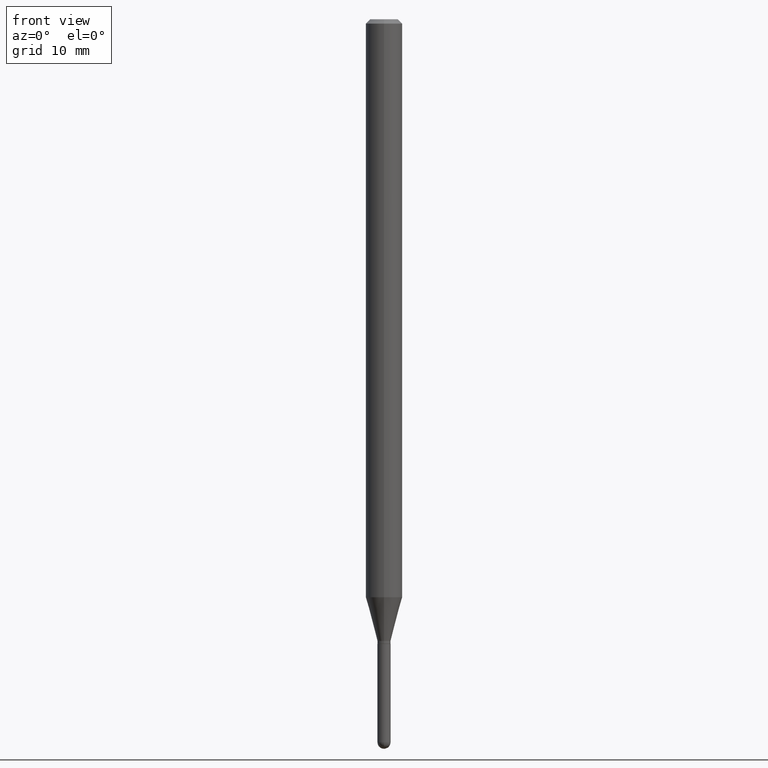
[diagram: clean part render]
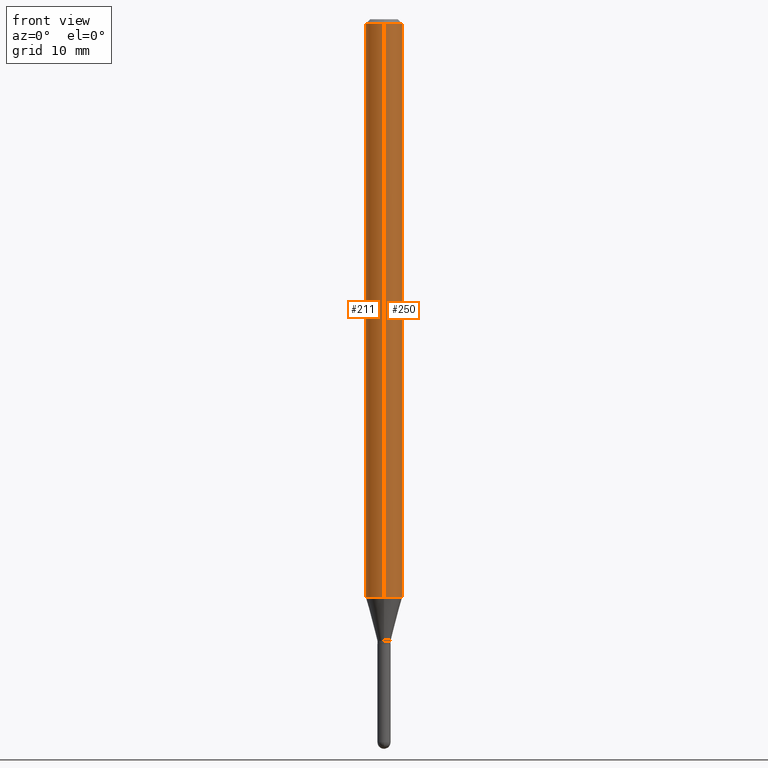
[diagram: same view with one multi-face feature highlighted, each face labeled with its STEP entity id]
A machine part, front view. The highlighted faces form ONE feature: a constant-radius fillet chain: 2 tangent blend faces with common blend radius 1.5875 mm. The faces share edges in the B-rep.
Their STEP definitions:
[1] entity #250 (Cylinder):
#13 = VERTEX_POINT ( 'NONE', #134 ) ;
#24 = ORIENTED_EDGE ( 'NONE', *, *, #463, .F. ) ;
#26 = DIRECTION ( 'NONE',  ( -6.982962677686265922E-15, -1.000000000000000000, 3.483106191921935554E-15 ) ) ;
#33 = FACE_OUTER_BOUND ( 'NONE', #379, .T. ) ;
#38 = VERTEX_POINT ( 'NONE', #365 ) ;
#44 = ORIENTED_EDGE ( 'NONE', *, *, #430, .T. ) ;
#61 = AXIS2_PLACEMENT_3D ( 'NONE', #115, #301, #344 ) ;
#63 = VECTOR ( 'NONE', #502, 39.37007874015748143 ) ;
#109 = LINE ( 'NONE', #265, #63 ) ;
#113 = LINE ( 'NONE', #461, #485 ) ;
#115 = CARTESIAN_POINT ( 'NONE',  ( 4.843688895711374227E-29, -6.915776021999746285E-15, -1.980717967697243731 ) ) ;
#116 = DIRECTION ( 'NONE',  ( -2.445420789181098238E-29, 3.491550101925886841E-15, 1.000000000000000000 ) ) ;
#134 = CARTESIAN_POINT ( 'NONE',  ( 4.440892098501114269E-16, 0.06249999999999995143, -0.01500000000000054588 ) ) ;
#154 = DIRECTION ( 'NONE',  ( -2.445420789181098238E-29, 3.491550101925886841E-15, 1.000000000000000000 ) ) ;
#176 = CIRCLE ( 'NONE', #295, 0.06250000000000000000 ) ;
#217 = ORIENTED_EDGE ( 'NONE', *, *, #373, .F. ) ;
#233 = CARTESIAN_POINT ( 'NONE',  ( -4.364351673553912750E-16, -0.06250000000000005551, -0.01500000000000011047 ) ) ;
#237 = CYLINDRICAL_SURFACE ( 'NONE', #445, 0.06250000000000000000 ) ;
#250 = ADVANCED_FACE ( 'NONE', ( #33 ), #237, .T. ) ;
#265 = CARTESIAN_POINT ( 'NONE',  ( -4.364351673553916201E-16, -0.06250000000000000000, 2.182218813703679029E-16 ) ) ;
#282 = CIRCLE ( 'NONE', #61, 0.06250000000000000000 ) ;
#295 = AXIS2_PLACEMENT_3D ( 'NONE', #453, #312, #26 ) ;
#301 = DIRECTION ( 'NONE',  ( -2.445420789181098238E-29, 3.491550101925886841E-15, 1.000000000000000000 ) ) ;
#312 = DIRECTION ( 'NONE',  ( -2.445420789181098238E-29, 3.491550101925886841E-15, 1.000000000000000000 ) ) ;
#344 = DIRECTION ( 'NONE',  ( -6.982962677686265922E-15, -1.000000000000000000, 4.370956789862821150E-15 ) ) ;
#365 = CARTESIAN_POINT ( 'NONE',  ( -4.364351673553434010E-16, -0.06250000000000693889, -1.980717967697243287 ) ) ;
#373 = EDGE_CURVE ( 'NONE', #407, #13, #176, .T. ) ;
#379 = EDGE_LOOP ( 'NONE', ( #420, #44, #217, #24 ) ) ;
#395 = CARTESIAN_POINT ( 'NONE',  ( 0.000000000000000000, 0.000000000000000000, 0.000000000000000000 ) ) ;
#399 = DIRECTION ( 'NONE',  ( -6.982962677686265922E-15, -1.000000000000000000, 3.491550101925886447E-15 ) ) ;
#407 = VERTEX_POINT ( 'NONE', #233 ) ;
#420 = ORIENTED_EDGE ( 'NONE', *, *, #439, .T. ) ;
#430 = EDGE_CURVE ( 'NONE', #462, #13, #113, .T. ) ;
#439 = EDGE_CURVE ( 'NONE', #38, #462, #282, .T. ) ;
#445 = AXIS2_PLACEMENT_3D ( 'NONE', #395, #116, #399 ) ;
#453 = CARTESIAN_POINT ( 'NONE',  ( 3.668131183771727494E-31, -5.237325152888944203E-17, -0.01500000000000032904 ) ) ;
#461 = CARTESIAN_POINT ( 'NONE',  ( 4.440892098500625669E-16, 0.06250000000000000000, -2.182218813703679029E-16 ) ) ;
#462 = VERTEX_POINT ( 'NONE', #465 ) ;
#463 = EDGE_CURVE ( 'NONE', #38, #407, #109, .T. ) ;
#465 = CARTESIAN_POINT ( 'NONE',  ( 4.440892098501108353E-16, 0.06249999999999306804, -1.980717967697243953 ) ) ;
#485 = VECTOR ( 'NONE', #154, 39.37007874015748143 ) ;
#502 = DIRECTION ( 'NONE',  ( -2.445420789181098238E-29, 3.491550101925886841E-15, 1.000000000000000000 ) ) ;
[2] entity #211 (Cylinder):
#13 = VERTEX_POINT ( 'NONE', #134 ) ;
#23 = DIRECTION ( 'NONE',  ( -6.982962677686265922E-15, -1.000000000000000000, 3.483106191921935554E-15 ) ) ;
#25 = CYLINDRICAL_SURFACE ( 'NONE', #207, 0.06250000000000000000 ) ;
#29 = CIRCLE ( 'NONE', #490, 0.06250000000000000000 ) ;
#38 = VERTEX_POINT ( 'NONE', #365 ) ;
#55 = ORIENTED_EDGE ( 'NONE', *, *, #463, .T. ) ;
#63 = VECTOR ( 'NONE', #502, 39.37007874015748143 ) ;
#109 = LINE ( 'NONE', #265, #63 ) ;
#113 = LINE ( 'NONE', #461, #485 ) ;
#134 = CARTESIAN_POINT ( 'NONE',  ( 4.440892098501114269E-16, 0.06249999999999995143, -0.01500000000000054588 ) ) ;
#145 = CARTESIAN_POINT ( 'NONE',  ( 4.843688895711374227E-29, -6.915776021999746285E-15, -1.980717967697243731 ) ) ;
#154 = DIRECTION ( 'NONE',  ( -2.445420789181098238E-29, 3.491550101925886841E-15, 1.000000000000000000 ) ) ;
#182 = DIRECTION ( 'NONE',  ( -6.982962677686265922E-15, -1.000000000000000000, 3.491550101925886447E-15 ) ) ;
#184 = ORIENTED_EDGE ( 'NONE', *, *, #471, .F. ) ;
#188 = CARTESIAN_POINT ( 'NONE',  ( 0.000000000000000000, 0.000000000000000000, 0.000000000000000000 ) ) ;
#207 = AXIS2_PLACEMENT_3D ( 'NONE', #188, #390, #182 ) ;
#211 = ADVANCED_FACE ( 'NONE', ( #495 ), #25, .T. ) ;
#233 = CARTESIAN_POINT ( 'NONE',  ( -4.364351673553912750E-16, -0.06250000000000005551, -0.01500000000000011047 ) ) ;
#265 = CARTESIAN_POINT ( 'NONE',  ( -4.364351673553916201E-16, -0.06250000000000000000, 2.182218813703679029E-16 ) ) ;
#268 = CARTESIAN_POINT ( 'NONE',  ( 3.668131183771727494E-31, -5.237325152888944203E-17, -0.01500000000000032904 ) ) ;
#296 = EDGE_LOOP ( 'NONE', ( #385, #401, #55, #184 ) ) ;
#324 = CIRCLE ( 'NONE', #388, 0.06250000000000000000 ) ;
#365 = CARTESIAN_POINT ( 'NONE',  ( -4.364351673553434010E-16, -0.06250000000000693889, -1.980717967697243287 ) ) ;
#385 = ORIENTED_EDGE ( 'NONE', *, *, #430, .F. ) ;
#388 = AXIS2_PLACEMENT_3D ( 'NONE', #268, #423, #23 ) ;
#390 = DIRECTION ( 'NONE',  ( -2.445420789181098238E-29, 3.491550101925886841E-15, 1.000000000000000000 ) ) ;
#401 = ORIENTED_EDGE ( 'NONE', *, *, #411, .T. ) ;
#407 = VERTEX_POINT ( 'NONE', #233 ) ;
#411 = EDGE_CURVE ( 'NONE', #462, #38, #29, .T. ) ;
#413 = DIRECTION ( 'NONE',  ( -2.445420789181098238E-29, 3.491550101925886841E-15, 1.000000000000000000 ) ) ;
#423 = DIRECTION ( 'NONE',  ( -2.445420789181098238E-29, 3.491550101925886841E-15, 1.000000000000000000 ) ) ;
#430 = EDGE_CURVE ( 'NONE', #462, #13, #113, .T. ) ;
#461 = CARTESIAN_POINT ( 'NONE',  ( 4.440892098500625669E-16, 0.06250000000000000000, -2.182218813703679029E-16 ) ) ;
#462 = VERTEX_POINT ( 'NONE', #465 ) ;
#463 = EDGE_CURVE ( 'NONE', #38, #407, #109, .T. ) ;
#465 = CARTESIAN_POINT ( 'NONE',  ( 4.440892098501108353E-16, 0.06249999999999306804, -1.980717967697243953 ) ) ;
#468 = DIRECTION ( 'NONE',  ( -6.982962677686265922E-15, -1.000000000000000000, 4.370956789862821150E-15 ) ) ;
#471 = EDGE_CURVE ( 'NONE', #13, #407, #324, .T. ) ;
#485 = VECTOR ( 'NONE', #154, 39.37007874015748143 ) ;
#490 = AXIS2_PLACEMENT_3D ( 'NONE', #145, #413, #468 ) ;
#495 = FACE_OUTER_BOUND ( 'NONE', #296, .T. ) ;
#502 = DIRECTION ( 'NONE',  ( -2.445420789181098238E-29, 3.491550101925886841E-15, 1.000000000000000000 ) ) ;